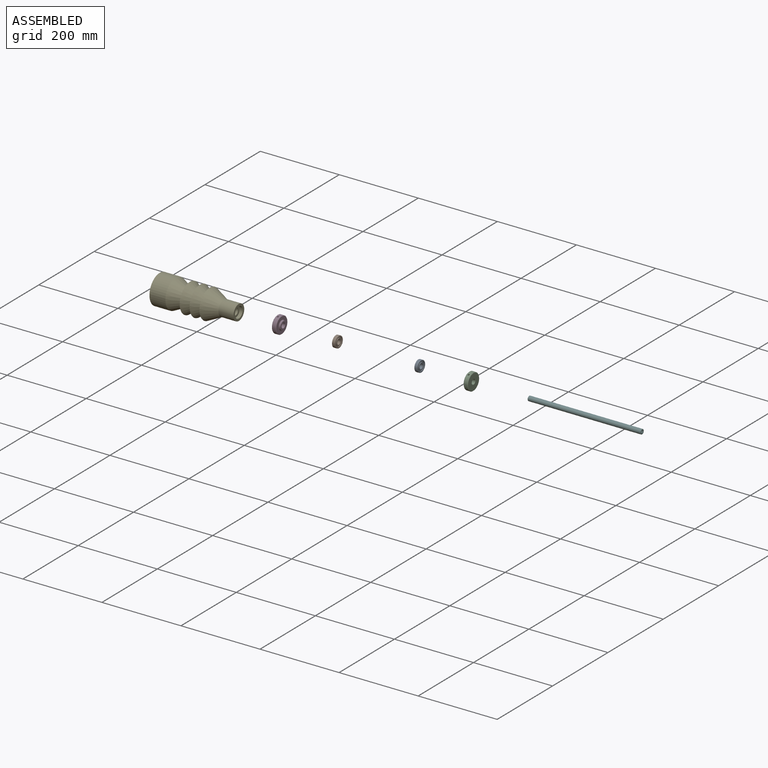
[diagram: assembled view]
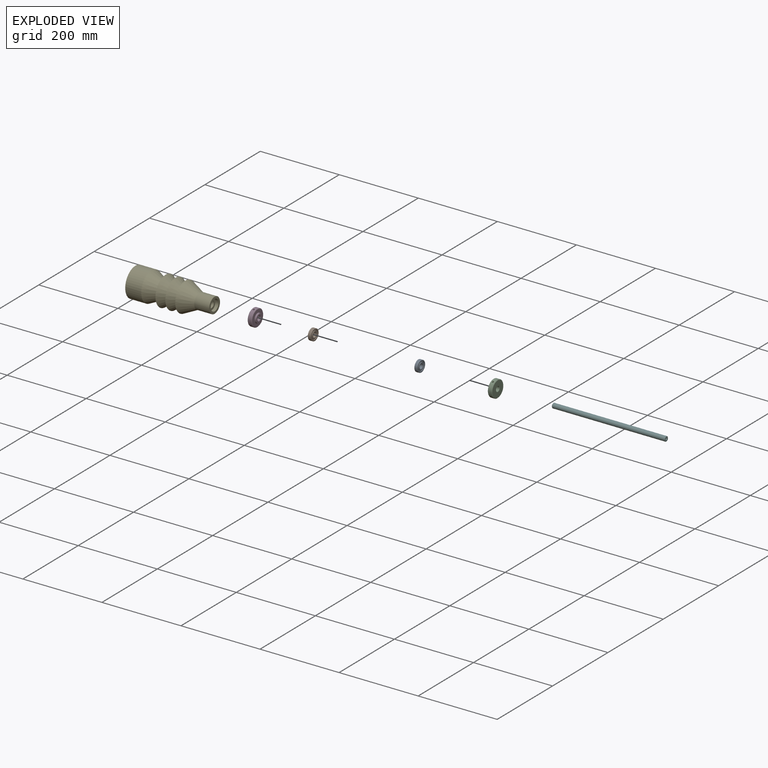
[diagram: exploded view]
GUIDED TOUR — MATED ASSEMBLY (Onshape document d69bee979fc8006a74645d3f, AutoMate assembly d69bee979fc8006a74645d3f_82058b8ea5c6dc25b18558fc_13261e3993f554cd0229f260_default)

This assembly has 6 components, labeled P0..P5 below (a component is one placed occurrence of a part; the same part can appear more than once), held together by 0 mates. A mate is a constraint between two components; its type names the relative motion it leaves free:
Axis/direction vectors are unit vectors and 'through' points are millimeter coordinates, both in the assembly's world frame.

MATES

ASSEMBLY ORDER
  1. P5 — the base component [order verified]
  2. P2 [order verified]
  3. P0 [order verified]
  4. P1 [order verified]
  5. P3 [order verified]
  6. P4 [order verified]
Order-tag legend:
  [order verified] — this step's position reverses a verified removal order: the component was checked to insert without passing through the ones already placed.

Of the 6 components, 1 carries the full construction recipe — the FeatureScript program that regenerates the part's solid from scratch; the rest are supplied as boundary geometry only.
Each toured component is shown spotlighted twice — in the assembled view, then in the exploded view, where a leader line traces a displaced component back to its assembled socket (saturated green if recipe-attached, orange if geometry-only; every other component desaturated gray) — followed by its recipe or geometry summary and the mates that hold it.
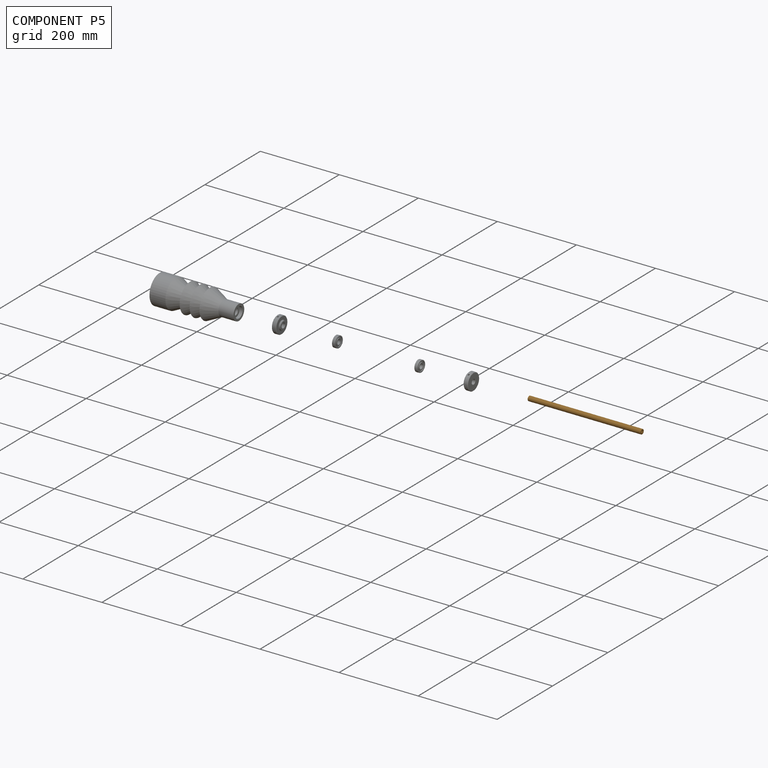
[diagram: component P5 — assembled]
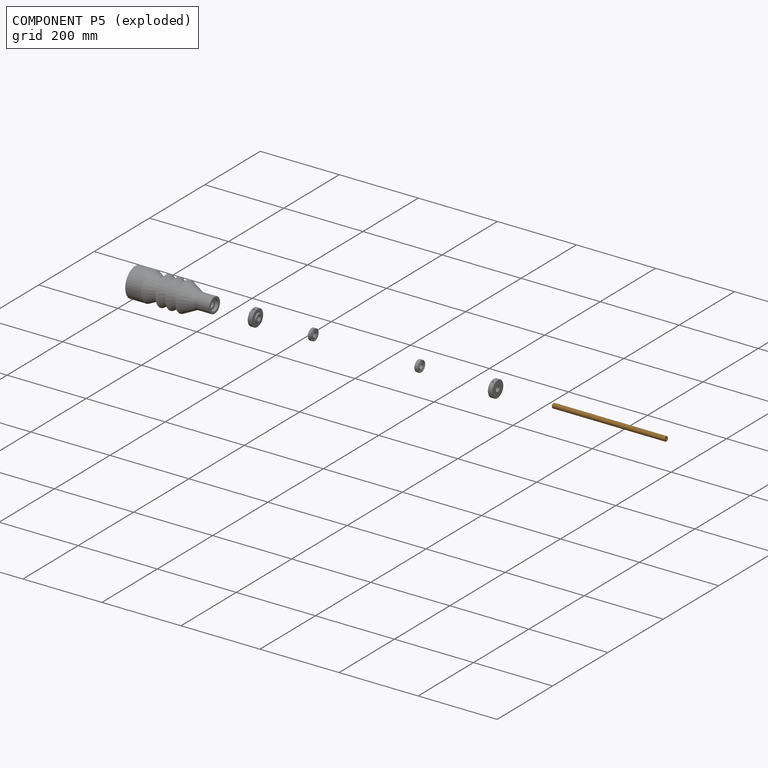
[diagram: component P5 — exploded]
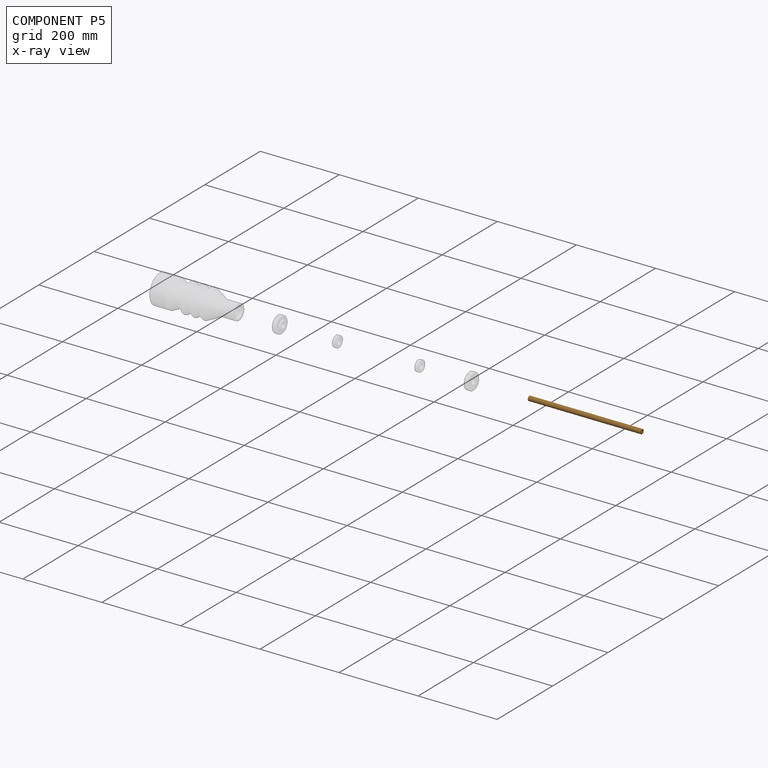
[diagram: component P5 — x-ray view]
COMPONENT P5 — geometry summary (no construction recipe available for this part):
  bounding box: 286.0 x 12.0 x 12.0 mm
  B-rep topology: 1 solid, 9 faces, 32 edges
  volume: 31532 mm^3 (77% of its bounding box)
  symmetry: revolution-symmetric about the x axis through its bounding-box center; 2-fold rotationally symmetric about the y axis; 2-fold rotationally symmetric about the z axis; mirror-symmetric across its x mid-plane, y mid-plane, z mid-plane
Held by: no mates (free).
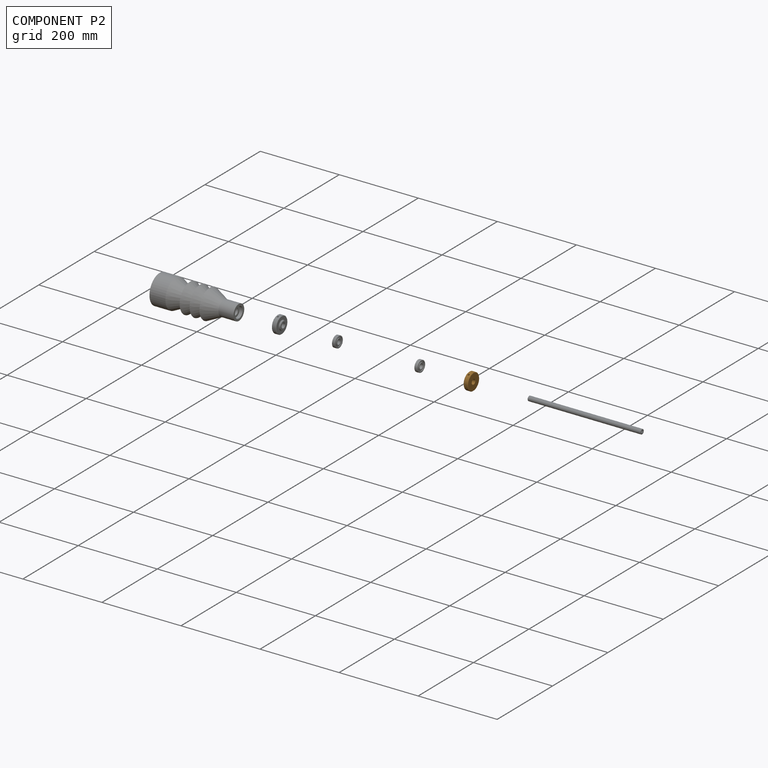
[diagram: component P2 — assembled]
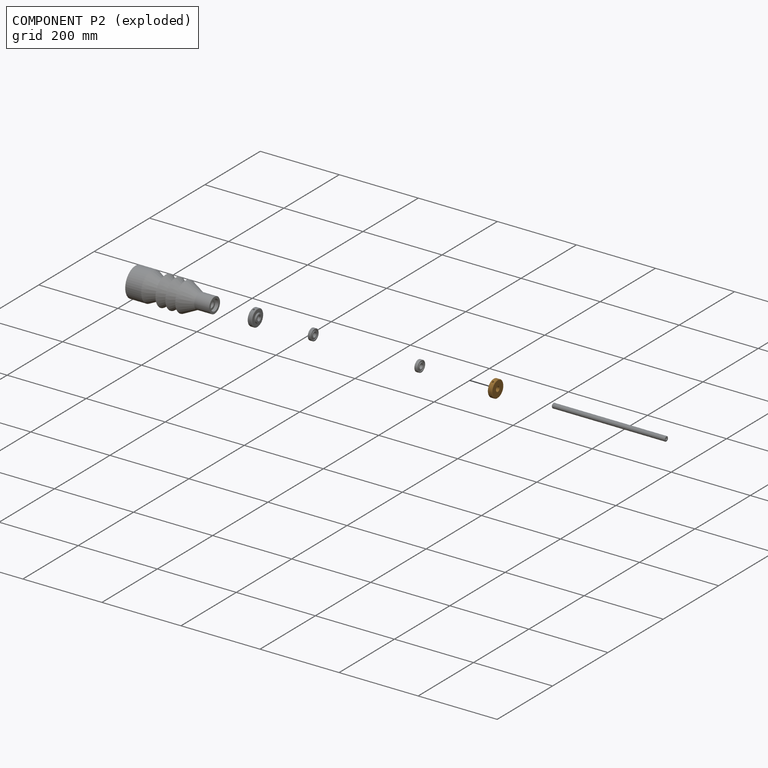
[diagram: component P2 — exploded]
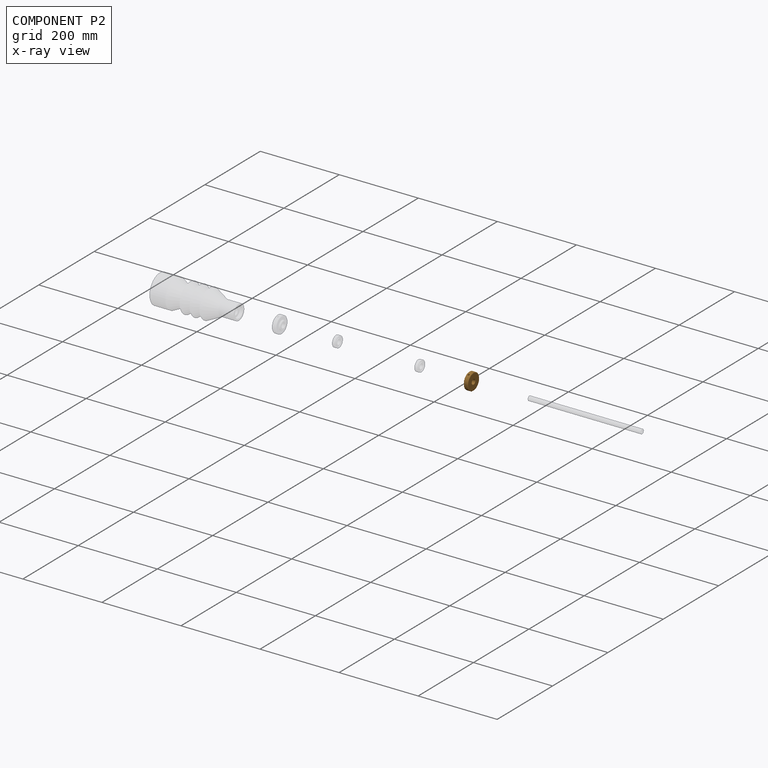
[diagram: component P2 — x-ray view]
COMPONENT P2 — geometry summary (no construction recipe available for this part):
  bounding box: 42.0 x 42.0 x 15.0 mm
  B-rep topology: 1 solid, 13 faces, 48 edges
  volume: 14694 mm^3 (56% of its bounding box)
  symmetry: mirror-symmetric across its y mid-plane
Held by: no mates (free).
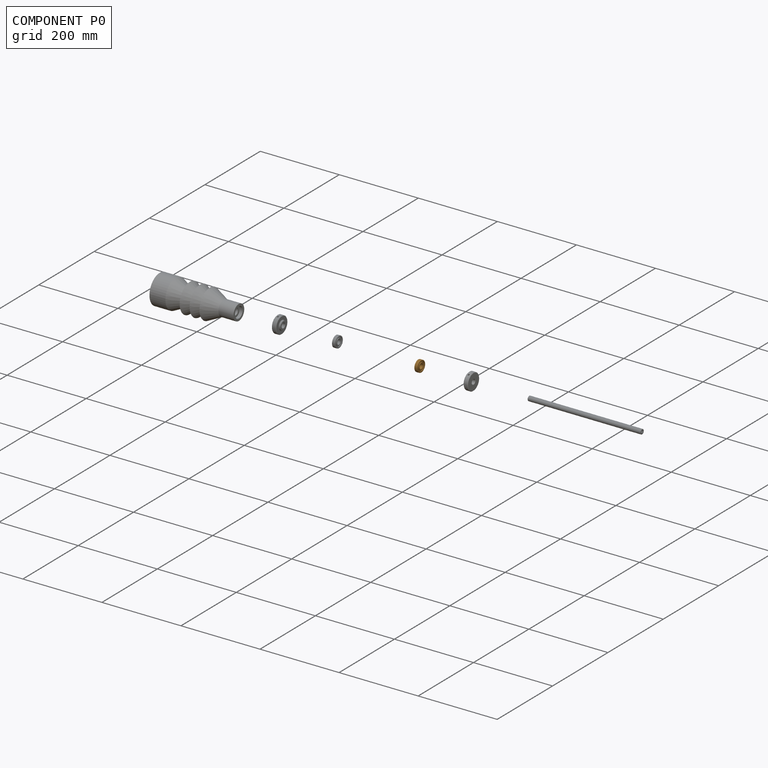
[diagram: component P0 — assembled]
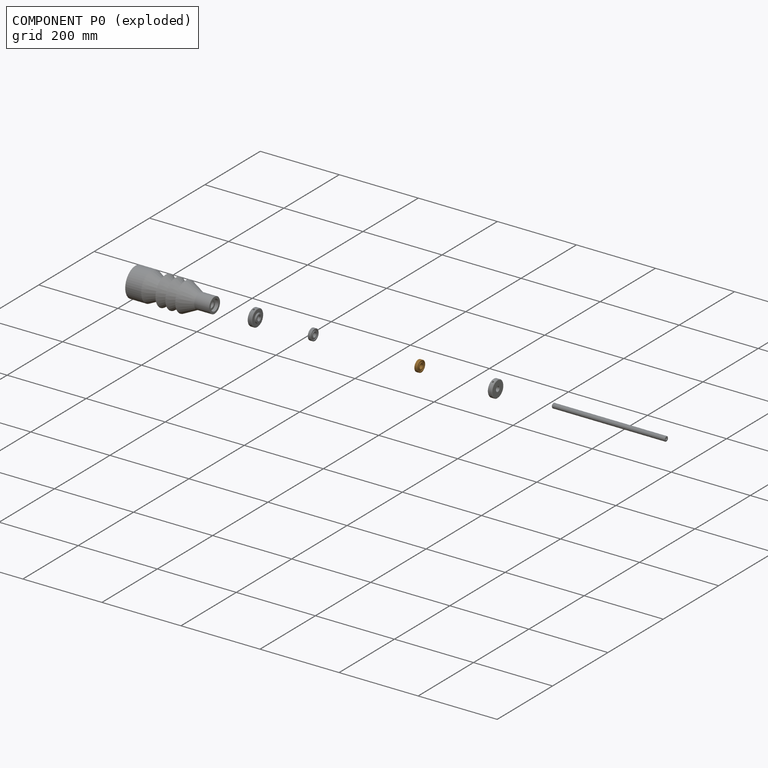
[diagram: component P0 — exploded]
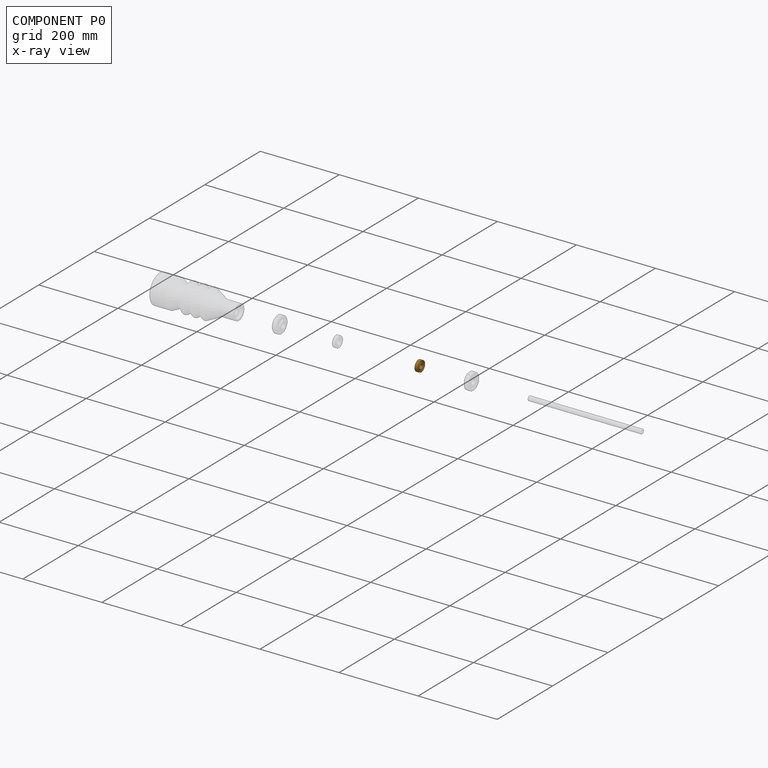
[diagram: component P0 — x-ray view]
COMPONENT P0 — geometry summary (no construction recipe available for this part):
  bounding box: 30.3 x 30.3 x 8.0 mm
  B-rep topology: 1 solid, 20 faces, 64 edges
  volume: 3620 mm^3 (49% of its bounding box)
  symmetry: revolution-symmetric about the x axis through its bounding-box center; mirror-symmetric across its y mid-plane, z mid-plane
Held by: no mates (free).
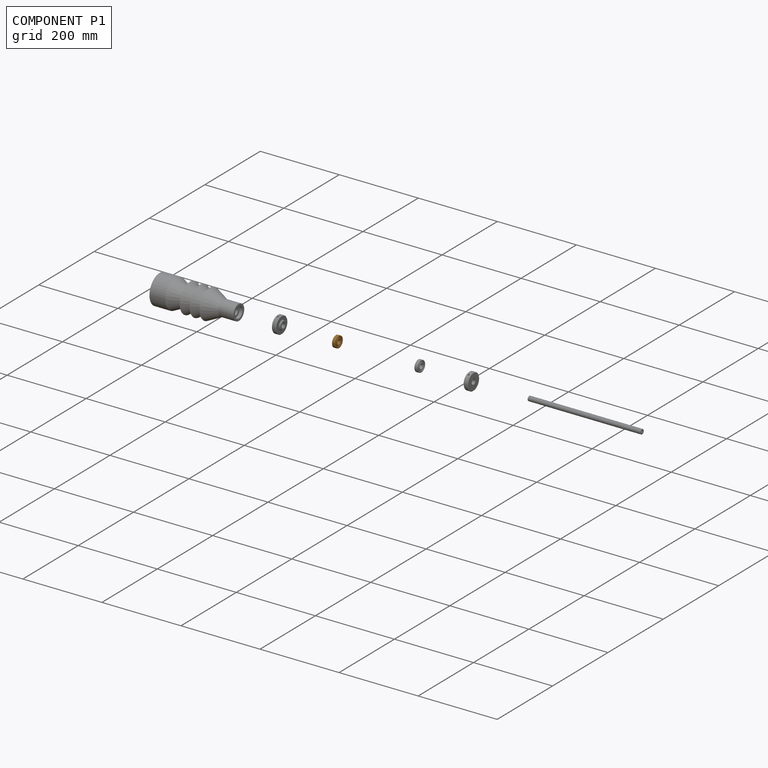
[diagram: component P1 — assembled]
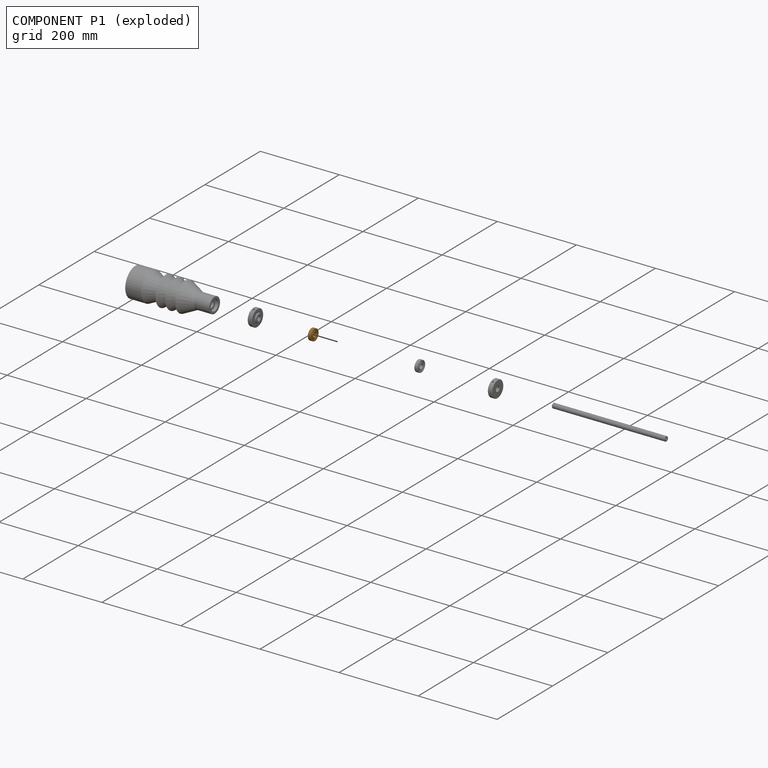
[diagram: component P1 — exploded]
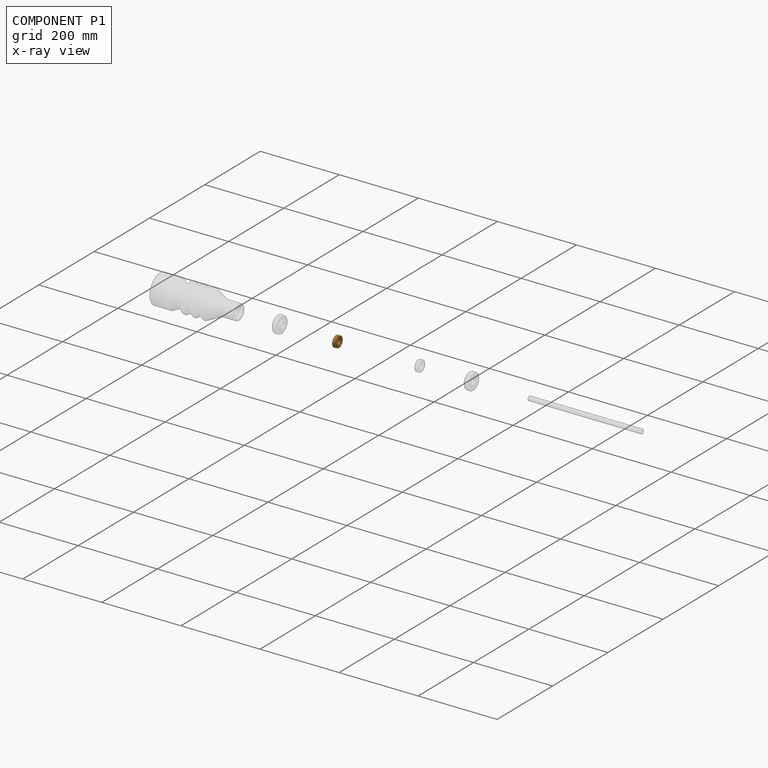
[diagram: component P1 — x-ray view]
COMPONENT P1 — geometry summary (no construction recipe available for this part):
  bounding box: 30.3 x 30.3 x 8.0 mm
  B-rep topology: 1 solid, 20 faces, 64 edges
  volume: 3620 mm^3 (49% of its bounding box)
  symmetry: revolution-symmetric about the x axis through its bounding-box center; mirror-symmetric across its y mid-plane, z mid-plane
Held by: no mates (free).
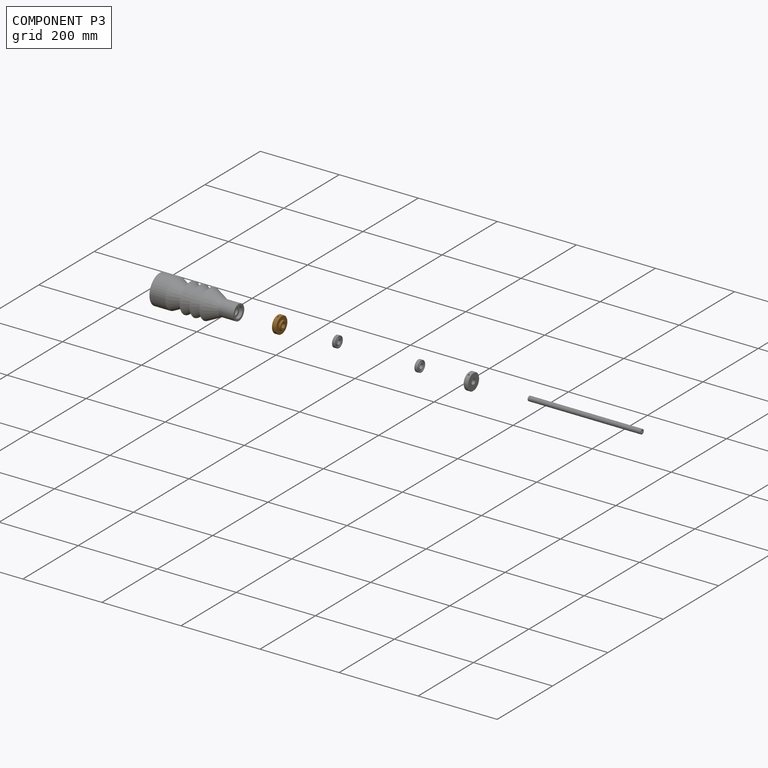
[diagram: component P3 — assembled]
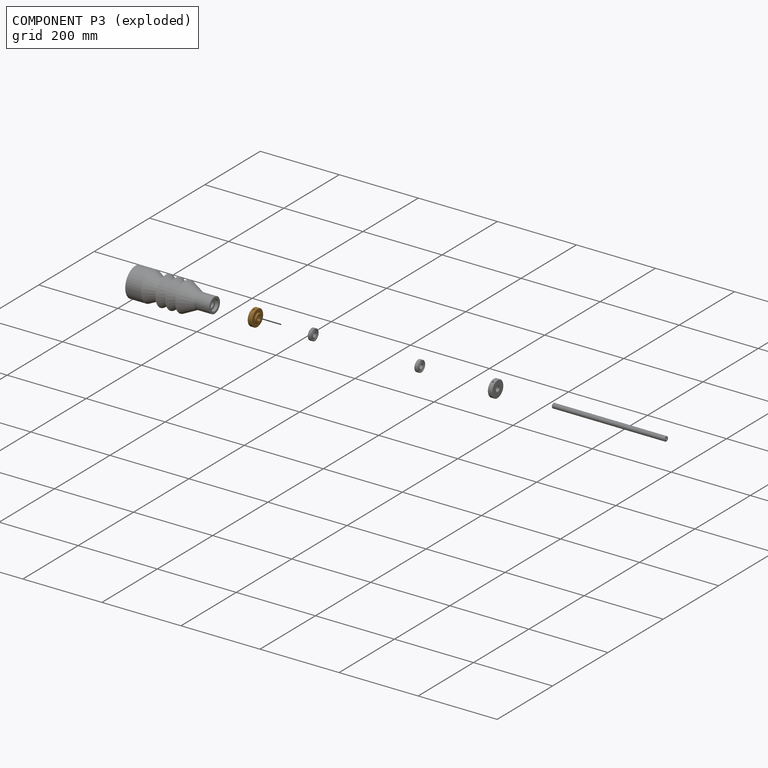
[diagram: component P3 — exploded]
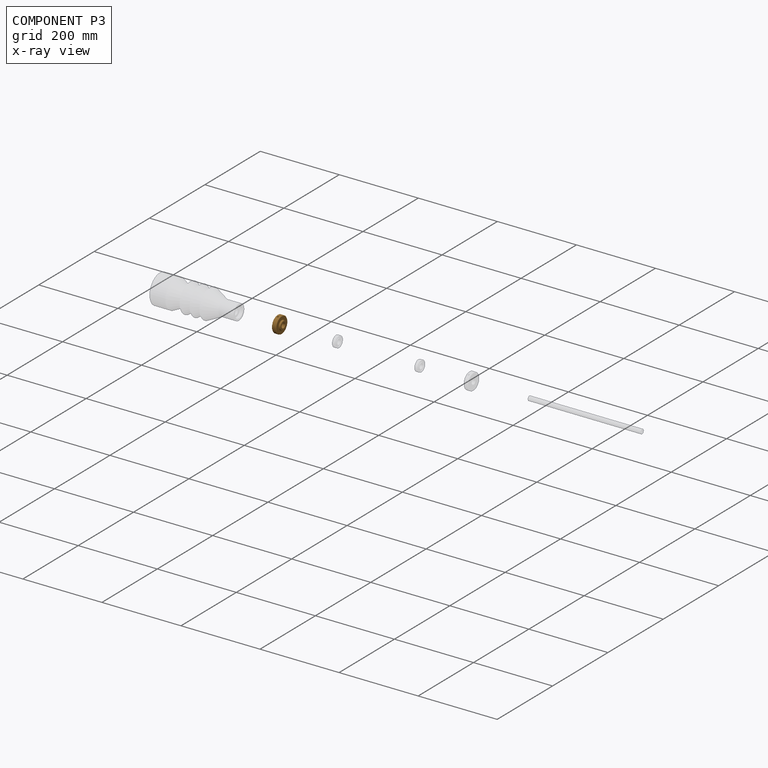
[diagram: component P3 — x-ray view]
COMPONENT P3 — geometry summary (no construction recipe available for this part):
  bounding box: 42.0 x 42.0 x 15.0 mm
  B-rep topology: 1 solid, 13 faces, 48 edges
  volume: 14694 mm^3 (56% of its bounding box)
  symmetry: mirror-symmetric across its y mid-plane
Held by: no mates (free).
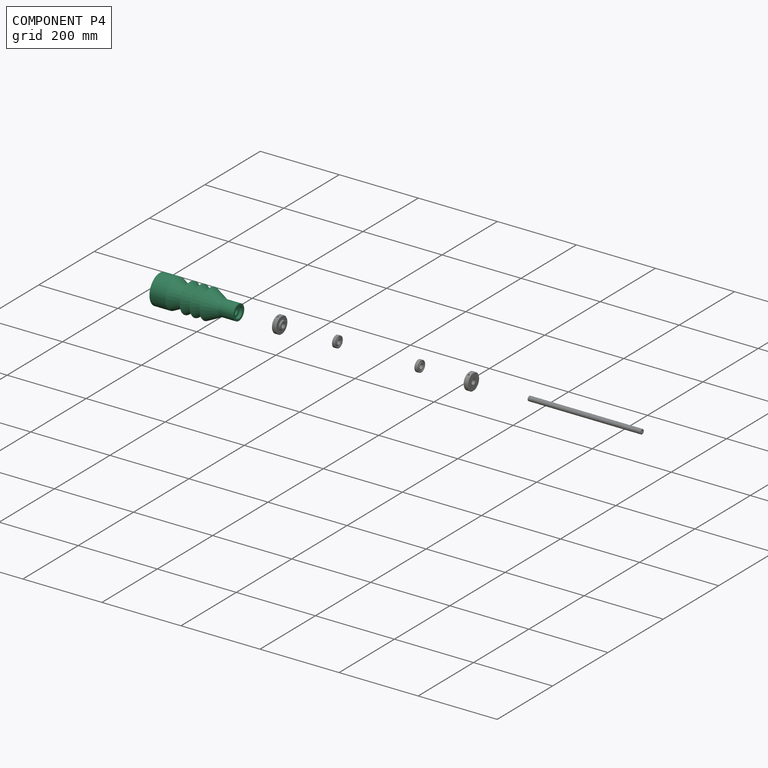
[diagram: component P4 — assembled]
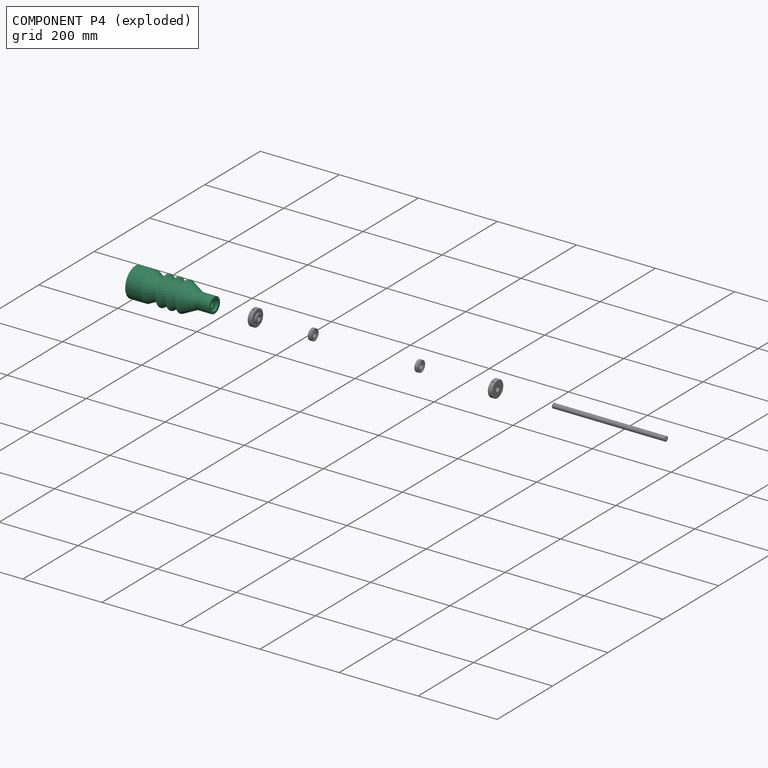
[diagram: component P4 — exploded]
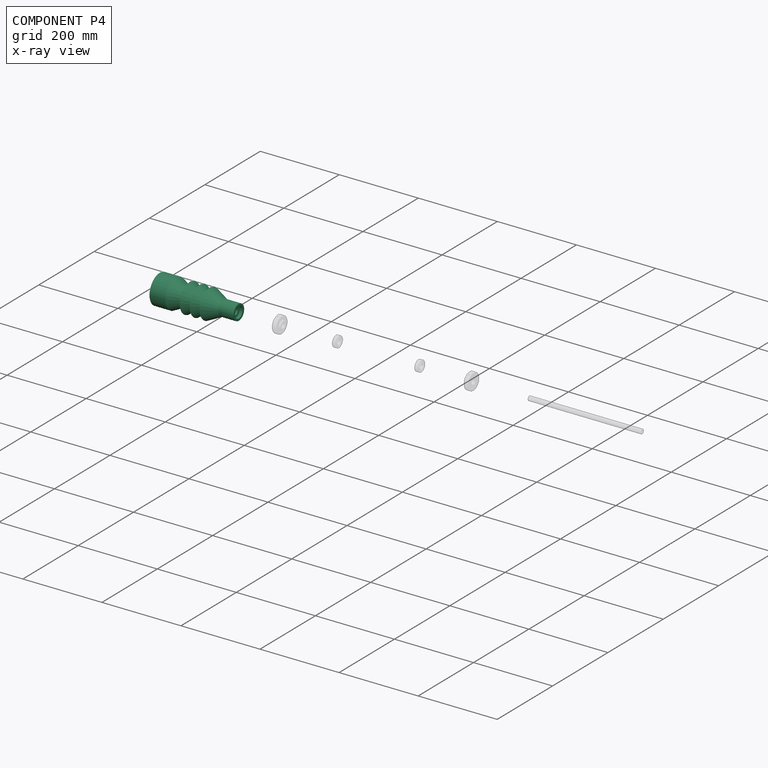
[diagram: component P4 — x-ray view]
COMPONENT P4 — recipe-attached (CADFS 00740192, mesh-verified: the recipe's output STEP matches this component's geometry to below the mesh-comparison resolution (tessellation chordal tolerance ~0.339 mm)).
Held by: no mates (free).
Construction recipe (FeatureScript — the CAD program that rebuilds this solid; sketch coordinates are in the units given by the * unit suffixes, e.g. mm):

FeatureScript 1549;
import(path : "onshape/std/geometry.fs", version : "1549.0");
import(path : "onshape/std/common.fs", version : "1549.0");
const mm = millimeter;
const VERTEX = EntityType.VERTEX;
const EDGE = EntityType.EDGE;
const FACE = EntityType.FACE;
const BODY = EntityType.BODY;
function v(x, y){return vector(x, y);}
function OD(order){return orderDisambiguation(order);}
function OSD(set){return originalSetDisambiguation(set);}
function TD(topology){return topologyDisambiguation(topology);}
function TDD(query){return trueDependencyDisambiguation(query);}
function sQuery(a, b, c) {return sketchEntityQuery(a, b, c);}

annotation { "Feature Type Name" : "Feature", "Feature Type Description" : "" }
export const myFeature = defineFeature(function(context is Context, id is Id, definition is map)
    precondition{}
    {
        {
            var Q0;
            Q0=qCreatedBy(makeId("Front.planeOp"),FACE);
            var sketch = newSketch(context, id + "F0", { "sketchPlane" : qUnion([Q0])});
            skLineSegment(sketch, "E0", {"start": v(-100.12, 0) * mm, "end": v(100.13, 0) * mm, "construction": true});
            skPoint(sketch, "E1", {"position": v(0, 0) * mm});
            skLineSegment(sketch, "E2", {"start": v(-92.12, 14) * mm, "end": v(-100.12, 14) * mm});
            skLineSegment(sketch, "E3", {"start": v(-100.13, 14) * mm, "end": v(-100.13, 37.08) * mm});
            skLineSegment(sketch, "E4", {"start": v(-100.13, 37.08) * mm, "end": v(-59.63, 37.08) * mm});
            skLineSegment(sketch, "E5", {"start": v(-59.63, 37.08) * mm, "end": v(-23.63, 19.5) * mm});
            skLineSegment(sketch, "E6", {"start": v(-23.63, 19.5) * mm, "end": v(-23.63, 37.08) * mm});
            skLineSegment(sketch, "E7", {"start": v(-23.63, 37.08) * mm, "end": v(1.37, 19.5) * mm});
            skLineSegment(sketch, "E8", {"start": v(1.37, 19.5) * mm, "end": v(1.37, 37.08) * mm});
            skLineSegment(sketch, "E9", {"start": v(1.37, 37.08) * mm, "end": v(26.37, 19.5) * mm});
            skLineSegment(sketch, "E10", {"start": v(26.37, 19.5) * mm, "end": v(26.37, 37.08) * mm});
            skLineSegment(sketch, "E11", {"start": v(26.37, 37.08) * mm, "end": v(62.12, 19.5) * mm});
            skLineSegment(sketch, "E12", {"start": v(62.12, 19.5) * mm, "end": v(100.13, 19.5) * mm});
            skLineSegment(sketch, "E13", {"start": v(100.13, 19.5) * mm, "end": v(100.13, 14) * mm});
            skLineSegment(sketch, "E14", {"start": v(100.12, 14) * mm, "end": v(92.13, 14) * mm});
            skLineSegment(sketch, "E15", {"start": v(-92.12, 14) * mm, "end": v(-92.12, 8.75) * mm});
            skLineSegment(sketch, "E16", {"start": v(92.13, 14) * mm, "end": v(92.13, 8.75) * mm});
            skLineSegment(sketch, "E17", {"start": v(-92.12, 8.75) * mm, "end": v(92.13, 8.75) * mm});
            skSolve(sketch);
        }
        {
            var Q0;
            Q0=makeQuery(id+"F0.imprint","IMPRINT",FACE,{"disambiguationData":[TD([[makeQuery(id+"F0.imprint","IMPRINT",EDGE,{"derivedFrom":sQuery(id+"F0.wireOp",EDGE,"E2")}),-1.0]])]});
            var Q1;
            Q1=sQuery(id+"F0.wireOp",EDGE,"E0");
            revolve(context, id + "F1", {"surfaceOperationType" : NewSurfaceOperationType.NEW, "entities" : qUnion([Q0]), "axis" : qUnion([Q1]), "revolveType" : RevolveType.FULL});
        }
    });
PROVENANCE & LICENSES
Assembly (occurrences, transforms, mates, per-part STEP geometry): AutoMate dataset, Zenodo record 7776208, CC0.
Construction recipes: CADFS (HuggingFace VladPyatov/CADFS, CC-BY-4.0, layered over the ABC dataset), FeatureScript reconstruction programs keyed by ABC model id.
Join: ABC meta listings map ABC model id -> Onshape documentId; within a shared document, parts are matched by geometric signature (bounding-box dims + volume at 0.1% relative tolerance, exact B-rep face/solid counts).
Verification: 1 of this assembly's 6 components carries a recipe attachment, and every attachment is mesh-verified: the CADFS STEP and the AutoMate member STEP were compared as meshes in their shared local frame (symmetric sampled-point-to-mesh distance); worst across the 1 attachment: below the mesh-comparison resolution (tessellation chordal tolerance ~0.339 mm) on a 226 mm part.
Renders: orthographic iso camera (az 35 / el 25); the floor grid conveys scale (grid pitch printed in each image; no ruler). In the exploded view each component is displaced by its stored offset vector: the offsets alone carry the explosion direction (mate normal/axis signs are not orientation cues and do not encode it), and separation distances are assigned per mate-chain, not proportionally to assembly-order depth.
